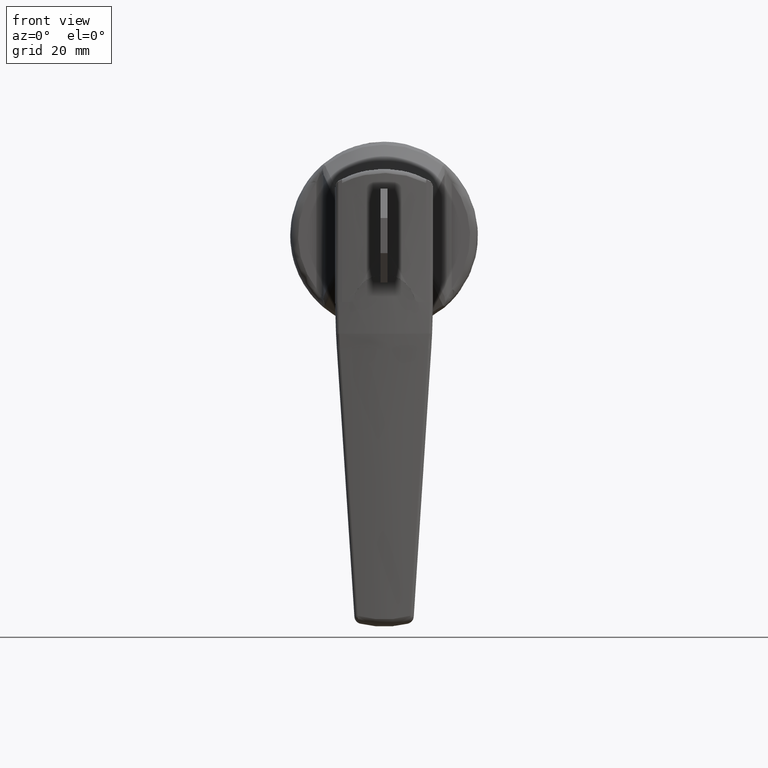
[diagram: clean part render]
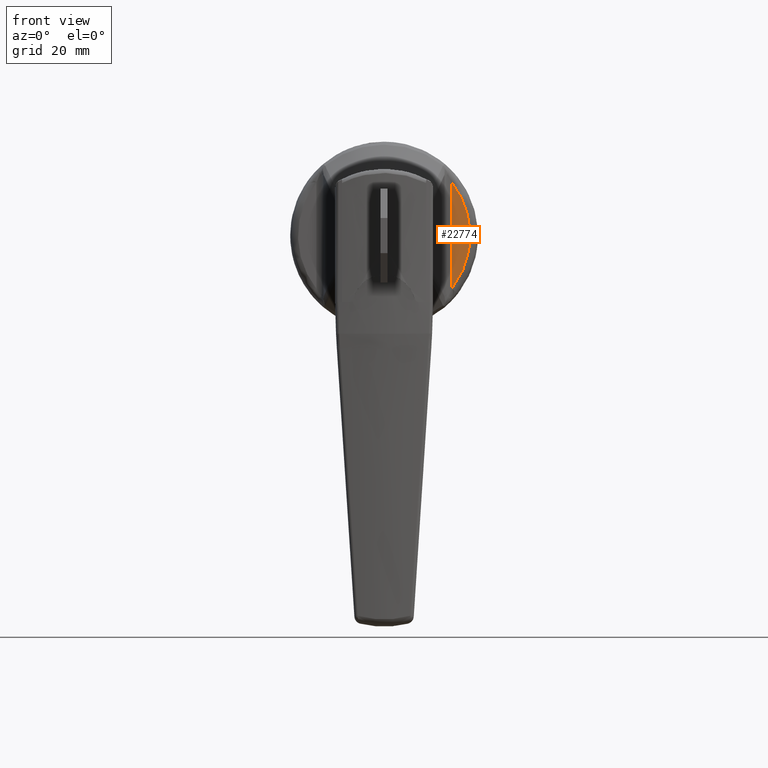
[diagram: same view with one face highlighted and labeled with its STEP entity id]
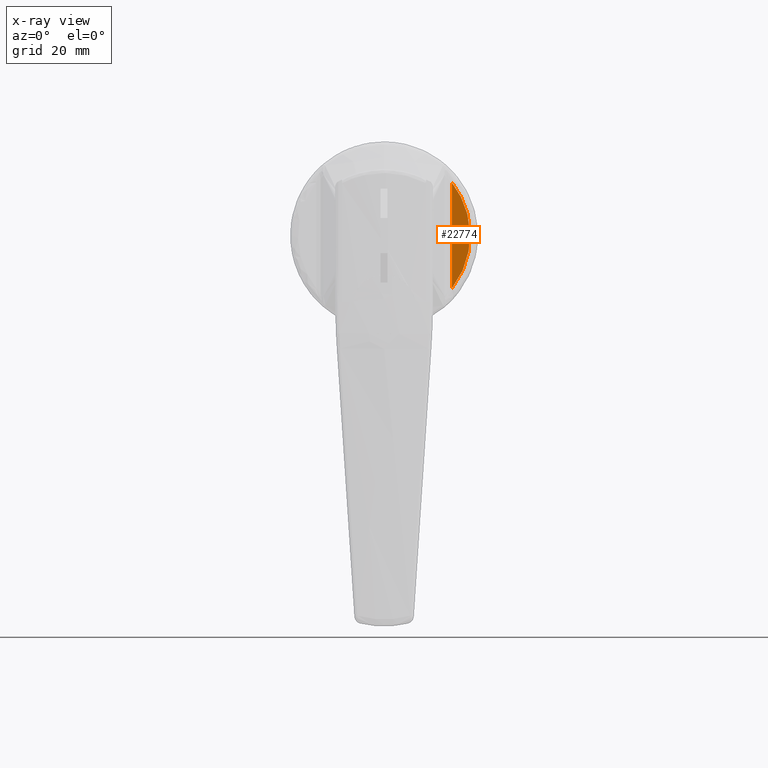
[diagram: x-ray of the same camera — body ghosted, the highlighted face saturated]
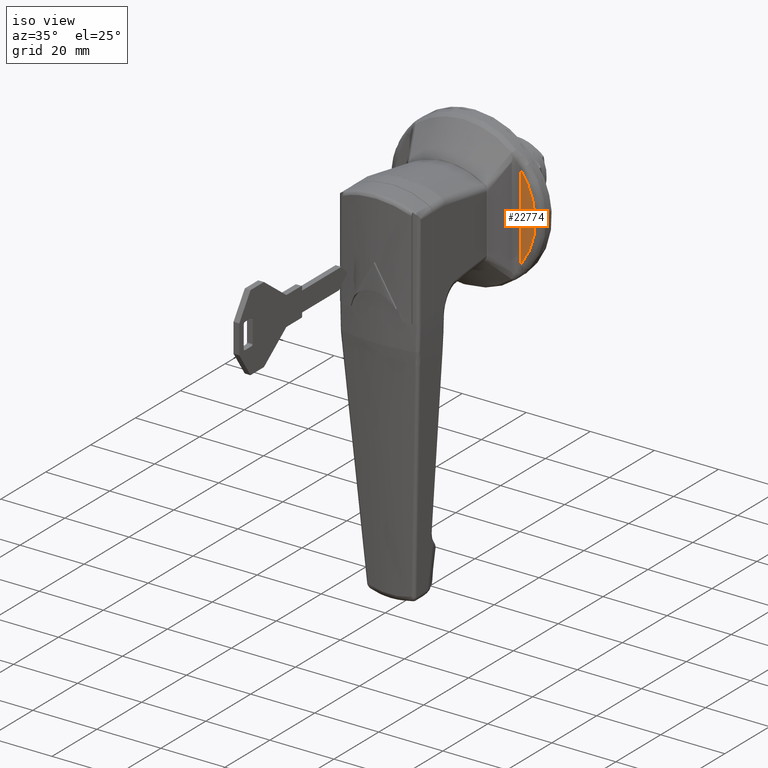
[diagram: same view with one face highlighted and labeled with its STEP entity id]
A machine part, front view. The second image highlights one B-rep face of the part: STEP entity #22774.
The next image is the same camera in x-ray: the body ghosted, the highlighted face saturated — about 0% of this face is hidden behind the body in this view.
A second angle (iso view) of the same face is appended — the face is thin or edge-on in the first view.
In plain terms, the highlighted face is a freeform B-spline surface patch.
Its self-contained STEP definition (entity closure, byte-faithful):
#21176=CARTESIAN_POINT('',(-4.500000000000000,-17.304739584785249,-13.584770439826100));
#21177=VERTEX_POINT('',#21176);
#21371=CARTESIAN_POINT('',(-4.500000000000000,-17.304739584149001,13.584770440636600));
#21372=VERTEX_POINT('',#21371);
#21386=CARTESIAN_POINT('',(-4.500000000000000,-17.304739584785249,-13.584770439826100));
#21387=CARTESIAN_POINT('',(-4.500000000000000,-27.969216042664154,6.549813E-010));
#21388=CARTESIAN_POINT('',(-4.500000000000000,-17.304739584149001,13.584770440636600));
#21396=(BOUNDED_CURVE()B_SPLINE_CURVE(2,(#21386,#21387,#21388),.UNSPECIFIED.,.F.,.U.)CURVE()GEOMETRIC_REPRESENTATION_ITEM()QUASI_UNIFORM_CURVE()RATIONAL_B_SPLINE_CURVE((1.0,0.786579072021227,1.0))REPRESENTATION_ITEM(''));
#21397=EDGE_CURVE('',#21177,#21372,#21396,.T.);
#22268=CARTESIAN_POINT('',(-4.500000000000000,-17.304739584149001,13.584770440636600));
#22269=CARTESIAN_POINT('',(-4.500000000000000,-17.304739584785249,-13.584770439826100));
#22270=QUASI_UNIFORM_CURVE('',1,(#22268,#22269),.UNSPECIFIED.,.F.,.U.);
#22271=EDGE_CURVE('',#21372,#21177,#22270,.T.);
#22765=CARTESIAN_POINT('',(-4.500000000000000,-22.234528265445849,-14.941888699097159));
#22766=CARTESIAN_POINT('',(-4.500000000000000,-22.234528265445849,14.941889671566161));
#22767=CARTESIAN_POINT('',(-4.500000000000000,-17.070210856934921,-14.941888699097159));
#22768=CARTESIAN_POINT('',(-4.500000000000000,-17.070210856934921,14.941889671566161));
#22769=B_SPLINE_SURFACE_WITH_KNOTS('',1,1,((#22765,#22767),(#22766,#22768)),.UNSPECIFIED.,.F.,.F.,.U.,(2,2),(2,2),(0.0,29.883778370663311),(0.0,5.164317408510925),.UNSPECIFIED.);
#22770=ORIENTED_EDGE('',*,*,#22271,.T.);
#22771=ORIENTED_EDGE('',*,*,#21397,.T.);
#22772=EDGE_LOOP('',(#22770,#22771));
#22773=FACE_OUTER_BOUND('',#22772,.T.);
#22774=ADVANCED_FACE('',(#22773),#22769,.T.);